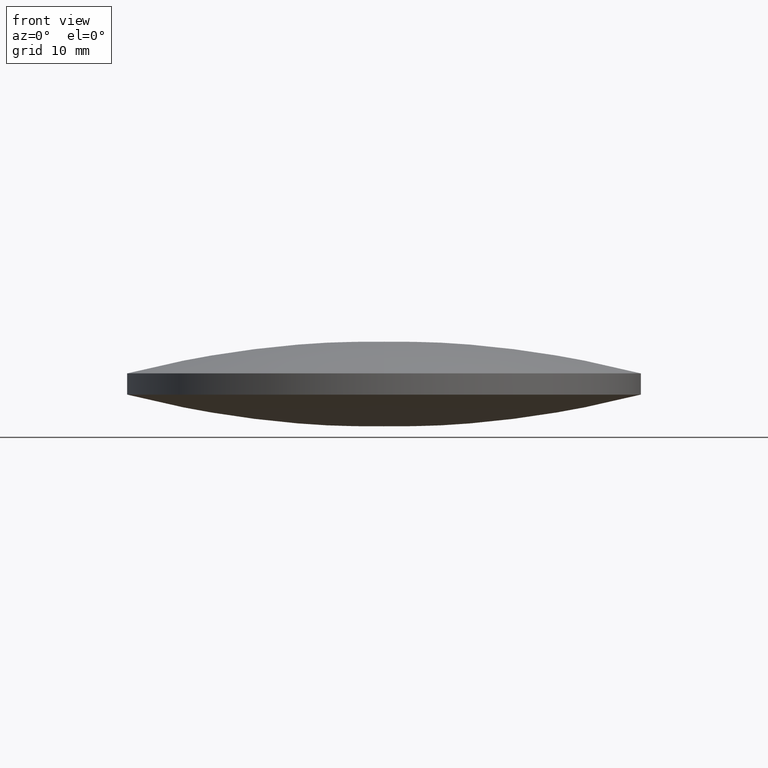
[diagram: clean part render]
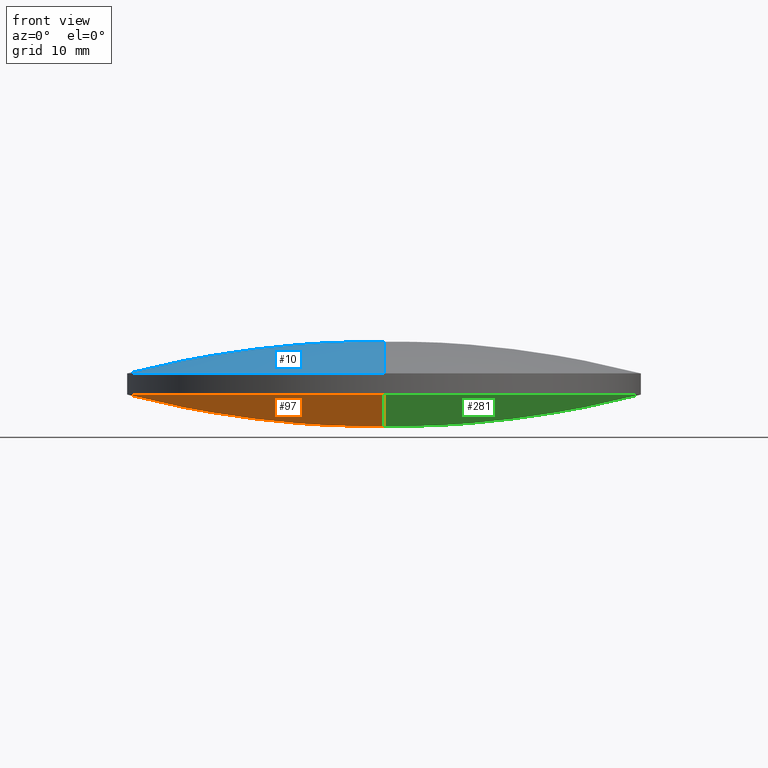
[diagram: same view with three faces highlighted in distinct colors, each labeled with its STEP entity id]
A machine part, front view with three faces highlighted in distinct colors.
Their STEP definitions:

[orange] entity #97 — the highlighted face is a freeform B-spline surface patch.
#1 = DIRECTION ( 'NONE',  ( 1.000000000000000000, 0.0000000000000000000, 0.0000000000000000000 ) ) ;
#9 = CARTESIAN_POINT ( 'NONE',  ( -2.131628207280299900E-014, 1.421085471520200100E-014, 102.3000000000000000 ) ) ;
#14 = ORIENTED_EDGE ( 'NONE', *, *, #178, .T. ) ;
#16 = AXIS2_PLACEMENT_3D ( 'NONE', #9, #168, #117 ) ;
#18 = EDGE_CURVE ( 'NONE', #149, #100, #58, .T. ) ;
#24 = ORIENTED_EDGE ( 'NONE', *, *, #18, .T. ) ;
#45 = CARTESIAN_POINT ( 'NONE',  ( -16.64093072215192800, -25.69826089171849800, 4.331878113134026300 ) ) ;
#46 = CARTESIAN_POINT ( 'NONE',  ( -17.37999393760358700, 8.753207586920993300, -0.01911861790125212600 ) ) ;
#53 = FACE_OUTER_BOUND ( 'NONE', #82, .T. ) ;
#58 = CIRCLE ( 'NONE', #181, 25.39999999999999900 ) ;
#67 = CARTESIAN_POINT ( 'NONE',  ( -25.82821182092975600, -8.753207586920977300, 2.159851191880197300 ) ) ;
#68 = CARTESIAN_POINT ( 'NONE',  ( -4.510281037539698400E-014, 8.753207586920993300, -1.117338629357461600 ) ) ;
#69 = AXIS2_PLACEMENT_3D ( 'NONE', #192, #213, #148 ) ;
#82 = EDGE_LOOP ( 'NONE', ( #208, #14, #24 ) ) ;
#86 = CARTESIAN_POINT ( 'NONE',  ( 9.992007221626412800E-016, 4.884981308350691100E-015, 3.203430937292290000 ) ) ;
#92 = CARTESIAN_POINT ( 'NONE',  ( -8.353687461122637700, 25.69826089171851500, 3.280358579011361600 ) ) ;
#94 = CARTESIAN_POINT ( 'NONE',  ( -16.64093072215192800, 25.69826089171851500, 4.331878113134026300 ) ) ;
#95 = CARTESIAN_POINT ( 'NONE',  ( -24.72989836085182000, 25.69826089171851500, 6.418189867925888400 ) ) ;
#96 = CARTESIAN_POINT ( 'NONE',  ( -8.724694541133912300, -8.753207586920975600, -1.117338629357461600 ) ) ;
#97 = ADVANCED_FACE ( 'NONE', ( #53 ), #269, .T. ) ;
#100 = VERTEX_POINT ( 'NONE', #115 ) ;
#107 = CIRCLE ( 'NONE', #16, 102.3000000000000000 ) ;
#115 = CARTESIAN_POINT ( 'NONE',  ( -2.131628207280299900E-014, 25.40000000000003100, 3.203430937292291300 ) ) ;
#117 = DIRECTION ( 'NONE',  ( 0.0000000000000000000, -1.000000000000000000, 0.0000000000000000000 ) ) ;
#120 = CARTESIAN_POINT ( 'NONE',  ( -4.510281037539698400E-014, -8.753207586920977300, -1.117338629357463600 ) ) ;
#145 = EDGE_CURVE ( 'NONE', #224, #100, #107, .T. ) ;
#148 = DIRECTION ( 'NONE',  ( 1.000000000000000000, 0.0000000000000000000, 0.0000000000000000000 ) ) ;
#149 = VERTEX_POINT ( 'NONE', #211 ) ;
#157 = CARTESIAN_POINT ( 'NONE',  ( -4.510281037539698400E-014, -25.69826089171849800, 3.280358579011359400 ) ) ;
#158 = CARTESIAN_POINT ( 'NONE',  ( -8.353687461122637700, -25.69826089171849800, 3.280358579011361600 ) ) ;
#162 = CARTESIAN_POINT ( 'NONE',  ( -17.37999393760358700, -8.753207586920975600, -0.01911861790125386100 ) ) ;
#164 = CARTESIAN_POINT ( 'NONE',  ( -8.724694541133912300, 8.753207586920993300, -1.117338629357459900 ) ) ;
#168 = DIRECTION ( 'NONE',  ( 1.000000000000000000, 0.0000000000000000000, 0.0000000000000000000 ) ) ;
#178 = EDGE_CURVE ( 'NONE', #224, #149, #204, .T. ) ;
#181 = AXIS2_PLACEMENT_3D ( 'NONE', #86, #253, #1 ) ;
#187 = CARTESIAN_POINT ( 'NONE',  ( -24.72989836085182000, -25.69826089171849800, 6.418189867925888400 ) ) ;
#192 = CARTESIAN_POINT ( 'NONE',  ( 9.992007221626412800E-016, 4.884981308350691100E-015, 3.203430937292290000 ) ) ;
#197 = CARTESIAN_POINT ( 'NONE',  ( -2.131628207280299900E-014, -25.40000000000001300, 3.203430937292291300 ) ) ;
#204 = CIRCLE ( 'NONE', #69, 25.39999999999999900 ) ;
#208 = ORIENTED_EDGE ( 'NONE', *, *, #145, .F. ) ;
#211 = CARTESIAN_POINT ( 'NONE',  ( -25.39999999999999900, 7.995584178184967200E-015, 3.203430937292290000 ) ) ;
#213 = DIRECTION ( 'NONE',  ( -0.0000000000000000000, -0.0000000000000000000, -1.000000000000000000 ) ) ;
#214 = CARTESIAN_POINT ( 'NONE',  ( -4.510281037539698400E-014, 25.69826089171851500, 3.280358579011359400 ) ) ;
#224 = VERTEX_POINT ( 'NONE', #197 ) ;
#237 = CARTESIAN_POINT ( 'NONE',  ( -25.82821182092975600, 8.753207586920993300, 2.159851191880199500 ) ) ;
#253 = DIRECTION ( 'NONE',  ( -0.0000000000000000000, -0.0000000000000000000, -1.000000000000000000 ) ) ;
#269 =( BOUNDED_SURFACE ( )  B_SPLINE_SURFACE ( 3, 3, ( 
 ( #187, #45, #158, #157 ),
 ( #67, #162, #96, #120 ),
 ( #237, #46, #164, #68 ),
 ( #95, #94, #92, #214 ) ),
 .UNSPECIFIED., .F., .F., .F. ) 
 B_SPLINE_SURFACE_WITH_KNOTS ( ( 4, 4 ),
 ( 4, 4 ),
 ( 0.0000000000000000000, 1.000000000000000000 ),
 ( 0.0000000000000000000, 1.000000000000000000 ),
 .UNSPECIFIED. ) 
 GEOMETRIC_REPRESENTATION_ITEM ( )  RATIONAL_B_SPLINE_SURFACE ( (
 ( 1.000000000000000000, 0.9946974155303642800, 0.9946974155303642800, 1.000000000000000000),
 ( 0.9786226224893361800, 0.9734333933696900400, 0.9734333933696900400, 0.9786226224893361800),
 ( 0.9786226224893361800, 0.9734333933696900400, 0.9734333933696900400, 0.9786226224893361800),
 ( 1.000000000000000000, 0.9946974155303642800, 0.9946974155303642800, 1.000000000000000000) ) ) 
 REPRESENTATION_ITEM ( '' )  SURFACE ( )  );

[blue] entity #10 — the highlighted face is a freeform B-spline surface patch.
#4 = DIRECTION ( 'NONE',  ( -0.0000000000000000000, -0.0000000000000000000, -1.000000000000000000 ) ) ;
#10 = ADVANCED_FACE ( 'NONE', ( #188 ), #226, .T. ) ;
#19 = VERTEX_POINT ( 'NONE', #23 ) ;
#23 = CARTESIAN_POINT ( 'NONE',  ( 2.131628207280299900E-014, -25.40000000000001300, 5.296569062707712700 ) ) ;
#33 = EDGE_LOOP ( 'NONE', ( #139, #42, #89 ) ) ;
#41 = CARTESIAN_POINT ( 'NONE',  ( 2.131628207280299900E-014, 8.753207586920989800, 9.617338629357481800 ) ) ;
#42 = ORIENTED_EDGE ( 'NONE', *, *, #135, .T. ) ;
#44 = DIRECTION ( 'NONE',  ( 1.000000000000000000, 0.0000000000000000000, 0.0000000000000000000 ) ) ;
#55 = VERTEX_POINT ( 'NONE', #231 ) ;
#62 = CARTESIAN_POINT ( 'NONE',  ( -24.72989836085183400, -25.69826089171851500, 2.081810132074090700 ) ) ;
#63 = CARTESIAN_POINT ( 'NONE',  ( -8.353687461122604000, -25.69826089171851500, 5.219641420988644100 ) ) ;
#71 = EDGE_CURVE ( 'NONE', #116, #55, #248, .T. ) ;
#79 = CIRCLE ( 'NONE', #167, 102.3000000000000000 ) ;
#85 = CARTESIAN_POINT ( 'NONE',  ( -17.37999393760357900, -8.753207586920986200, 8.519118617901250800 ) ) ;
#89 = ORIENTED_EDGE ( 'NONE', *, *, #71, .F. ) ;
#112 = CARTESIAN_POINT ( 'NONE',  ( -8.353687461122607500, 25.69826089171852200, 5.219641420988657500 ) ) ;
#116 = VERTEX_POINT ( 'NONE', #232 ) ;
#121 = DIRECTION ( 'NONE',  ( -1.000000000000000000, 0.0000000000000000000, 0.0000000000000000000 ) ) ;
#132 = CARTESIAN_POINT ( 'NONE',  ( -25.82821182092978100, 8.753207586920988000, 6.340148808119796100 ) ) ;
#134 = CARTESIAN_POINT ( 'NONE',  ( -16.64093072215191800, 25.69826089171852200, 4.168121886865980000 ) ) ;
#135 = EDGE_CURVE ( 'NONE', #19, #55, #79, .T. ) ;
#136 = CARTESIAN_POINT ( 'NONE',  ( 2.131628207280299900E-014, -8.753207586920988000, 9.617338629357471200 ) ) ;
#138 = CARTESIAN_POINT ( 'NONE',  ( -24.72989836085184500, 25.69826089171852200, 2.081810132074102700 ) ) ;
#139 = ORIENTED_EDGE ( 'NONE', *, *, #238, .F. ) ;
#155 = CIRCLE ( 'NONE', #198, 25.39999999999999900 ) ;
#161 = CARTESIAN_POINT ( 'NONE',  ( -8.724694541133880300, -8.753207586920986200, 9.617338629357471200 ) ) ;
#166 = AXIS2_PLACEMENT_3D ( 'NONE', #252, #4, #44 ) ;
#167 = AXIS2_PLACEMENT_3D ( 'NONE', #189, #121, #279 ) ;
#174 = DIRECTION ( 'NONE',  ( 1.000000000000000000, 0.0000000000000000000, 0.0000000000000000000 ) ) ;
#183 = CARTESIAN_POINT ( 'NONE',  ( -16.64093072215191100, -25.69826089171851500, 4.168121886865966600 ) ) ;
#184 = CARTESIAN_POINT ( 'NONE',  ( -8.724694541133880300, 8.753207586920989800, 9.617338629357483600 ) ) ;
#186 = CARTESIAN_POINT ( 'NONE',  ( 2.131628207280299900E-014, 25.69826089171852200, 5.219641420988657500 ) ) ;
#188 = FACE_OUTER_BOUND ( 'NONE', #33, .T. ) ;
#189 = CARTESIAN_POINT ( 'NONE',  ( 2.131628207280299900E-014, 1.421085471520200100E-014, -93.79999999999999700 ) ) ;
#193 = DIRECTION ( 'NONE',  ( -0.0000000000000000000, -0.0000000000000000000, -1.000000000000000000 ) ) ;
#198 = AXIS2_PLACEMENT_3D ( 'NONE', #217, #193, #174 ) ;
#206 = CARTESIAN_POINT ( 'NONE',  ( -25.82821182092977700, -8.753207586920988000, 6.340148808119784500 ) ) ;
#207 = CARTESIAN_POINT ( 'NONE',  ( 2.131628207280299900E-014, -25.69826089171851500, 5.219641420988644100 ) ) ;
#217 = CARTESIAN_POINT ( 'NONE',  ( 9.992007221626412800E-016, 4.884981308350691100E-015, 5.296569062707710000 ) ) ;
#226 =( BOUNDED_SURFACE ( )  B_SPLINE_SURFACE ( 3, 3, ( 
 ( #207, #63, #183, #62 ),
 ( #136, #161, #85, #206 ),
 ( #41, #184, #228, #132 ),
 ( #186, #112, #134, #138 ) ),
 .UNSPECIFIED., .F., .F., .T. ) 
 B_SPLINE_SURFACE_WITH_KNOTS ( ( 4, 4 ),
 ( 4, 4 ),
 ( 0.0000000000000000000, 1.000000000000000000 ),
 ( 0.0000000000000000000, 1.000000000000000000 ),
 .UNSPECIFIED. ) 
 GEOMETRIC_REPRESENTATION_ITEM ( )  RATIONAL_B_SPLINE_SURFACE ( (
 ( 1.000000000000000000, 0.9946974155303642800, 0.9946974155303642800, 1.000000000000000000),
 ( 0.9786226224893361800, 0.9734333933696900400, 0.9734333933696900400, 0.9786226224893361800),
 ( 0.9786226224893361800, 0.9734333933696900400, 0.9734333933696900400, 0.9786226224893361800),
 ( 1.000000000000000000, 0.9946974155303642800, 0.9946974155303642800, 1.000000000000000000) ) ) 
 REPRESENTATION_ITEM ( '' )  SURFACE ( )  );
#228 = CARTESIAN_POINT ( 'NONE',  ( -17.37999393760357900, 8.753207586920989800, 8.519118617901259700 ) ) ;
#231 = CARTESIAN_POINT ( 'NONE',  ( 2.131628207280299900E-014, 25.40000000000002700, 5.296569062707712700 ) ) ;
#232 = CARTESIAN_POINT ( 'NONE',  ( -25.39999999999999900, 7.995584178184967200E-015, 5.296569062707710000 ) ) ;
#238 = EDGE_CURVE ( 'NONE', #19, #116, #155, .T. ) ;
#248 = CIRCLE ( 'NONE', #166, 25.39999999999999900 ) ;
#252 = CARTESIAN_POINT ( 'NONE',  ( 9.992007221626412800E-016, 4.884981308350691100E-015, 5.296569062707710000 ) ) ;
#279 = DIRECTION ( 'NONE',  ( 0.0000000000000000000, -1.000000000000000000, 5.426309993280335100E-016 ) ) ;

[green] entity #281 — the highlighted face is a freeform B-spline surface patch.
#8 = ORIENTED_EDGE ( 'NONE', *, *, #145, .T. ) ;
#9 = CARTESIAN_POINT ( 'NONE',  ( -2.131628207280299900E-014, 1.421085471520200100E-014, 102.3000000000000000 ) ) ;
#11 = CARTESIAN_POINT ( 'NONE',  ( 8.353687461122605700, 25.69826089171851500, 3.280358579011350100 ) ) ;
#12 = CARTESIAN_POINT ( 'NONE',  ( 25.82821182092977700, 8.753207586920993300, 2.159851191880215500 ) ) ;
#15 = CARTESIAN_POINT ( 'NONE',  ( 8.724694541133880300, -8.753207586920975600, -1.117338629357474100 ) ) ;
#16 = AXIS2_PLACEMENT_3D ( 'NONE', #9, #168, #117 ) ;
#28 = CARTESIAN_POINT ( 'NONE',  ( 25.39999999999999900, 4.884981308350691100E-015, 3.203430937292290000 ) ) ;
#36 = CARTESIAN_POINT ( 'NONE',  ( 16.64093072215191800, 25.69826089171851500, 4.331878113134028900 ) ) ;
#37 = CARTESIAN_POINT ( 'NONE',  ( 17.37999393760357600, 8.753207586920993300, -0.01911861790124865700 ) ) ;
#52 = CARTESIAN_POINT ( 'NONE',  ( 25.82821182092977700, -8.753207586920977300, 2.159851191880213700 ) ) ;
#54 = DIRECTION ( 'NONE',  ( -0.0000000000000000000, -0.0000000000000000000, -1.000000000000000000 ) ) ;
#56 = EDGE_CURVE ( 'NONE', #100, #191, #118, .T. ) ;
#64 = EDGE_LOOP ( 'NONE', ( #263, #8, #292 ) ) ;
#72 = CARTESIAN_POINT ( 'NONE',  ( 17.37999393760357600, -8.753207586920975600, -0.01911861790125039100 ) ) ;
#75 = CARTESIAN_POINT ( 'NONE',  ( -2.131628207280299900E-014, -8.753207586920977300, -1.117338629357474100 ) ) ;
#88 = CARTESIAN_POINT ( 'NONE',  ( 9.992007221626412800E-016, 4.884981308350691100E-015, 3.203430937292290000 ) ) ;
#100 = VERTEX_POINT ( 'NONE', #115 ) ;
#102 = CARTESIAN_POINT ( 'NONE',  ( -2.131628207280299900E-014, -25.69826089171849800, 3.280358579011349600 ) ) ;
#103 = CARTESIAN_POINT ( 'NONE',  ( 24.72989836085184100, -25.69826089171849800, 6.418189867925904400 ) ) ;
#107 = CIRCLE ( 'NONE', #16, 102.3000000000000000 ) ;
#110 = CIRCLE ( 'NONE', #293, 25.39999999999999900 ) ;
#115 = CARTESIAN_POINT ( 'NONE',  ( -2.131628207280299900E-014, 25.40000000000003100, 3.203430937292291300 ) ) ;
#117 = DIRECTION ( 'NONE',  ( 0.0000000000000000000, -1.000000000000000000, 0.0000000000000000000 ) ) ;
#118 = CIRCLE ( 'NONE', #245, 25.39999999999999900 ) ;
#124 = CARTESIAN_POINT ( 'NONE',  ( 8.353687461122605700, -25.69826089171849800, 3.280358579011350100 ) ) ;
#140 = DIRECTION ( 'NONE',  ( 1.000000000000000000, 0.0000000000000000000, 0.0000000000000000000 ) ) ;
#145 = EDGE_CURVE ( 'NONE', #224, #100, #107, .T. ) ;
#147 = CARTESIAN_POINT ( 'NONE',  ( 8.724694541133880300, 8.753207586920993300, -1.117338629357471900 ) ) ;
#160 =( BOUNDED_SURFACE ( )  B_SPLINE_SURFACE ( 3, 3, ( 
 ( #102, #124, #266, #103 ),
 ( #75, #15, #72, #52 ),
 ( #176, #147, #37, #12 ),
 ( #242, #11, #36, #218 ) ),
 .UNSPECIFIED., .F., .F., .F. ) 
 B_SPLINE_SURFACE_WITH_KNOTS ( ( 4, 4 ),
 ( 4, 4 ),
 ( 0.0000000000000000000, 1.000000000000000000 ),
 ( 0.0000000000000000000, 1.000000000000000000 ),
 .UNSPECIFIED. ) 
 GEOMETRIC_REPRESENTATION_ITEM ( )  RATIONAL_B_SPLINE_SURFACE ( (
 ( 1.000000000000000000, 0.9946974155303642800, 0.9946974155303642800, 1.000000000000000000),
 ( 0.9786226224893361800, 0.9734333933696900400, 0.9734333933696900400, 0.9786226224893361800),
 ( 0.9786226224893361800, 0.9734333933696900400, 0.9734333933696900400, 0.9786226224893361800),
 ( 1.000000000000000000, 0.9946974155303642800, 0.9946974155303642800, 1.000000000000000000) ) ) 
 REPRESENTATION_ITEM ( '' )  SURFACE ( )  );
#168 = DIRECTION ( 'NONE',  ( 1.000000000000000000, 0.0000000000000000000, 0.0000000000000000000 ) ) ;
#172 = DIRECTION ( 'NONE',  ( 1.000000000000000000, 0.0000000000000000000, 0.0000000000000000000 ) ) ;
#176 = CARTESIAN_POINT ( 'NONE',  ( -2.131628207280299900E-014, 8.753207586920993300, -1.117338629357472100 ) ) ;
#191 = VERTEX_POINT ( 'NONE', #28 ) ;
#196 = CARTESIAN_POINT ( 'NONE',  ( 9.992007221626412800E-016, 4.884981308350691100E-015, 3.203430937292290000 ) ) ;
#197 = CARTESIAN_POINT ( 'NONE',  ( -2.131628207280299900E-014, -25.40000000000001300, 3.203430937292291300 ) ) ;
#218 = CARTESIAN_POINT ( 'NONE',  ( 24.72989836085184100, 25.69826089171851500, 6.418189867925904400 ) ) ;
#224 = VERTEX_POINT ( 'NONE', #197 ) ;
#242 = CARTESIAN_POINT ( 'NONE',  ( -2.131628207280299900E-014, 25.69826089171851500, 3.280358579011349600 ) ) ;
#245 = AXIS2_PLACEMENT_3D ( 'NONE', #88, #272, #140 ) ;
#251 = EDGE_CURVE ( 'NONE', #191, #224, #110, .T. ) ;
#263 = ORIENTED_EDGE ( 'NONE', *, *, #251, .T. ) ;
#266 = CARTESIAN_POINT ( 'NONE',  ( 16.64093072215191800, -25.69826089171849800, 4.331878113134028900 ) ) ;
#272 = DIRECTION ( 'NONE',  ( -0.0000000000000000000, -0.0000000000000000000, -1.000000000000000000 ) ) ;
#281 = ADVANCED_FACE ( 'NONE', ( #290 ), #160, .T. ) ;
#290 = FACE_OUTER_BOUND ( 'NONE', #64, .T. ) ;
#292 = ORIENTED_EDGE ( 'NONE', *, *, #56, .T. ) ;
#293 = AXIS2_PLACEMENT_3D ( 'NONE', #196, #54, #172 ) ;